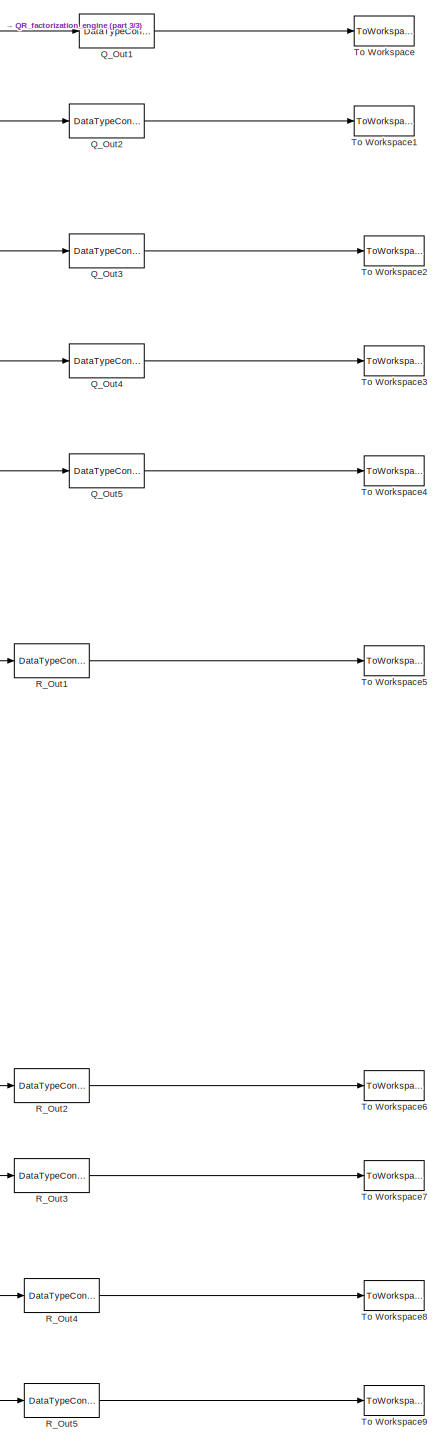
[diagram: root canvas - part 1/3, right side, full height]
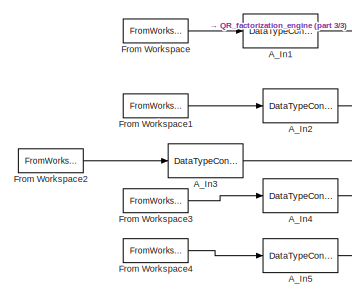
[diagram: root canvas - part 2/3, bottom left region]
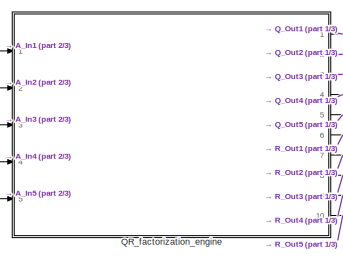
[diagram: root canvas - part 3/3, bottom center region]
MODEL slx_ea465715276a
KIND model
CONFIG AbsTol = auto
CONFIG EnableMultiTasking = off
CONFIG FixedStep = auto
CONFIG MaxStep = auto
CONFIG MinStep = auto
CONFIG RelTol = 1e-3
CONFIG SampleTimeConstraint = Unconstrained
CONFIG Solver = VariableStepAuto
CONFIG SolverName = VariableStepAuto
CONFIG StartTime = 0.0
CONFIG StopTime = simulation_stop_time
BLOCK [DataTypeConversion] A_In1
  OutDataTypeStr = fixdt(1,16,11)
  RndMeth = Floor
  SaturateOnIntegerOverflow = off
BLOCK [DataTypeConversion] A_In2
  OutDataTypeStr = fixdt(1,16,11)
  RndMeth = Floor
  SaturateOnIntegerOverflow = off
BLOCK [DataTypeConversion] A_In3
  OutDataTypeStr = fixdt(1,16,11)
  RndMeth = Floor
  SaturateOnIntegerOverflow = off
BLOCK [DataTypeConversion] A_In4
  OutDataTypeStr = fixdt(1,16,11)
  RndMeth = Floor
  SaturateOnIntegerOverflow = off
BLOCK [DataTypeConversion] A_In5
  OutDataTypeStr = fixdt(1,16,11)
  RndMeth = Floor
  SaturateOnIntegerOverflow = off
BLOCK [FromWorkspace] From Workspace
  Interpolate = off
  OutDataTypeStr = double
  OutputAfterFinalValue = Holding final value
  SampleTime = sample_time
  VariableName = AtI(1)
  ZeroCross = on
BLOCK [FromWorkspace] From Workspace1
  Interpolate = off
  OutDataTypeStr = double
  OutputAfterFinalValue = Holding final value
  SampleTime = sample_time
  VariableName = AtI(2)
  ZeroCross = on
BLOCK [FromWorkspace] From Workspace2
  Interpolate = off
  OutDataTypeStr = double
  OutputAfterFinalValue = Holding final value
  SampleTime = sample_time
  VariableName = AtI(3)
  ZeroCross = on
BLOCK [FromWorkspace] From Workspace3
  Interpolate = off
  OutDataTypeStr = double
  OutputAfterFinalValue = Holding final value
  SampleTime = sample_time
  VariableName = AtI(4)
  ZeroCross = on
BLOCK [FromWorkspace] From Workspace4
  Interpolate = off
  OutDataTypeStr = double
  OutputAfterFinalValue = Holding final value
  SampleTime = sample_time
  VariableName = AtI(5)
  ZeroCross = on
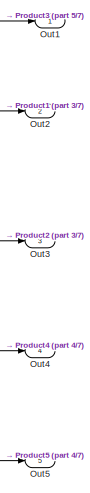
[diagram: QR_factorization_engine - part 1/7, top right region]
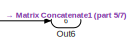
[diagram: QR_factorization_engine - part 2/7, middle right region]
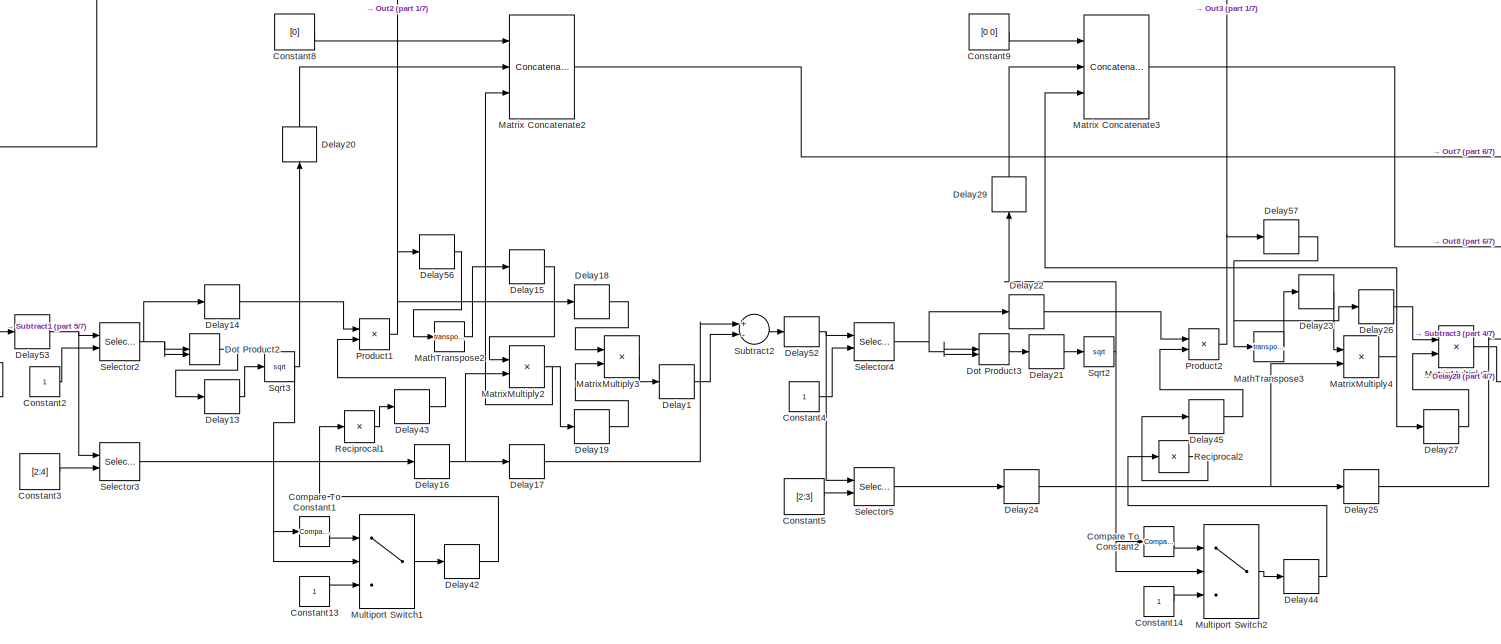
[diagram: QR_factorization_engine - part 3/7, bottom center region]
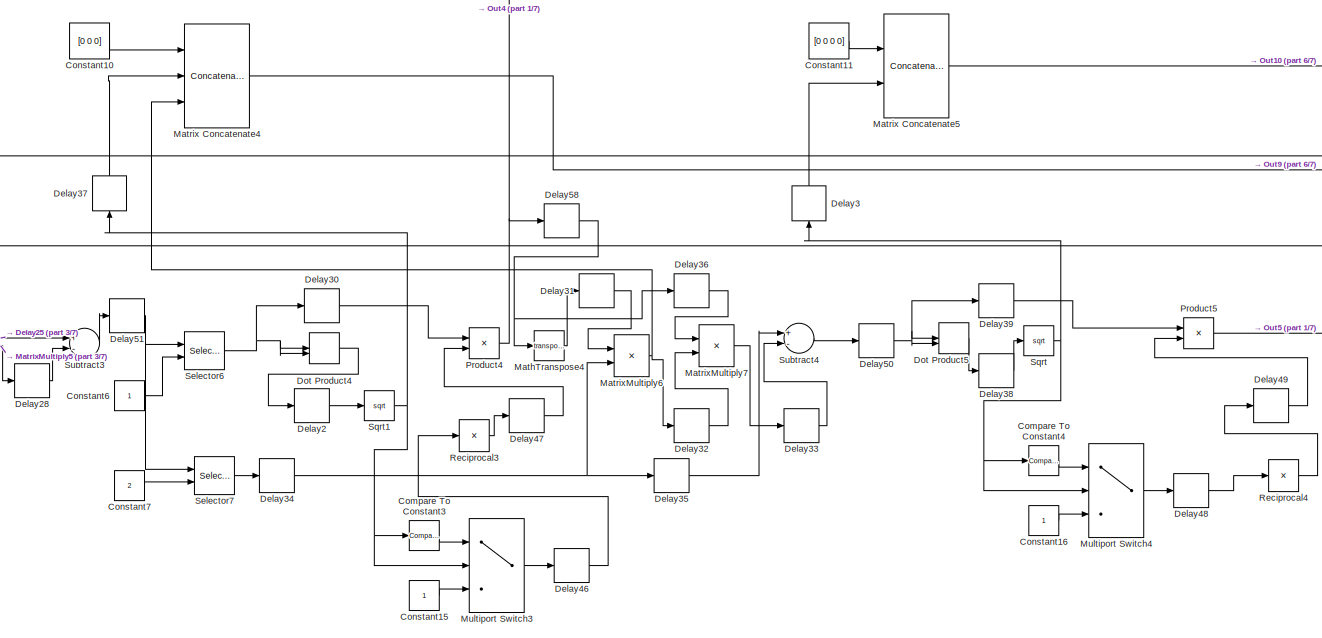
[diagram: QR_factorization_engine - part 4/7, bottom center region]
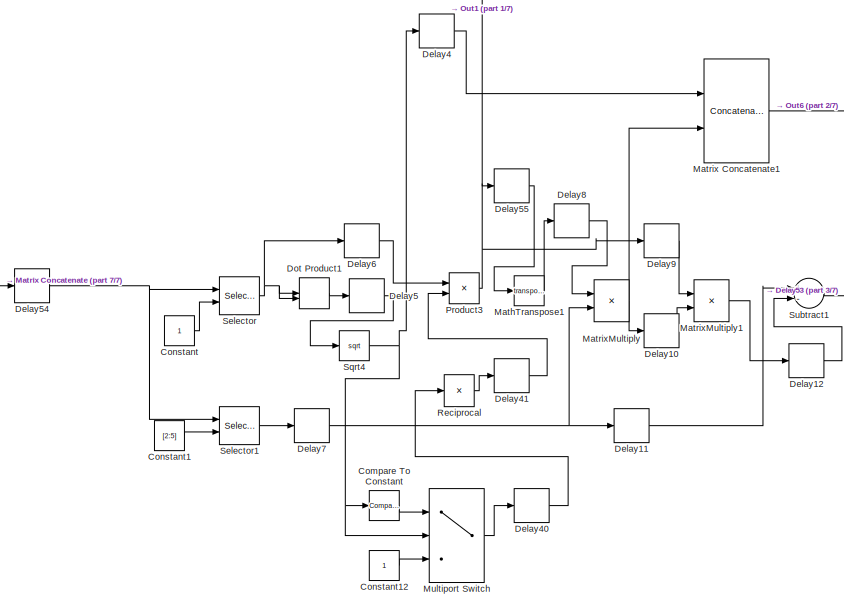
[diagram: QR_factorization_engine - part 5/7, bottom left region]
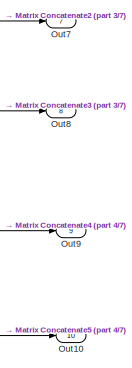
[diagram: QR_factorization_engine - part 6/7, bottom right region]
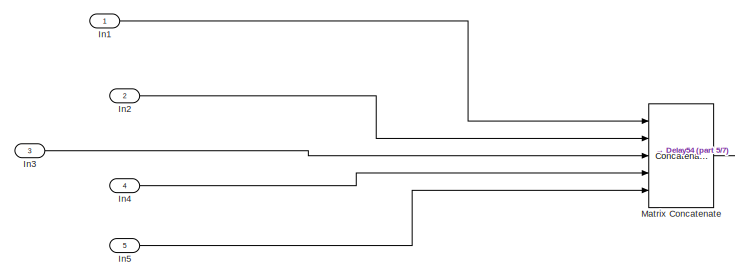
[diagram: QR_factorization_engine - part 7/7, bottom left region]
BLOCK [SubSystem] QR_factorization_engine
  Ports = [5, 10]
  RequestExecContextInheritance = off
BLOCK [Reference] QR_factorization_engine/Compare To Constant  REF=simulink/Logic and Bit
Operations/Compare
To Constant
  Ports = [1, 1]
  SourceBlock = simulink/Logic and Bit\nOperations/Compare\nTo Constant
  SourceProductBaseCode = SL
  SourceProductName = Simulink
  SourceType = Compare To Constant
BLOCK [Reference] QR_factorization_engine/Compare To Constant1  REF=simulink/Logic and Bit
Operations/Compare
To Constant
  Ports = [1, 1]
  SourceBlock = simulink/Logic and Bit\nOperations/Compare\nTo Constant
  SourceProductBaseCode = SL
  SourceProductName = Simulink
  SourceType = Compare To Constant
BLOCK [Reference] QR_factorization_engine/Compare To Constant2  REF=simulink/Logic and Bit
Operations/Compare
To Constant
  Ports = [1, 1]
  SourceBlock = simulink/Logic and Bit\nOperations/Compare\nTo Constant
  SourceProductBaseCode = SL
  SourceProductName = Simulink
  SourceType = Compare To Constant
BLOCK [Reference] QR_factorization_engine/Compare To Constant3  REF=simulink/Logic and Bit
Operations/Compare
To Constant
  Ports = [1, 1]
  SourceBlock = simulink/Logic and Bit\nOperations/Compare\nTo Constant
  SourceProductBaseCode = SL
  SourceProductName = Simulink
  SourceType = Compare To Constant
BLOCK [Reference] QR_factorization_engine/Compare To Constant4  REF=simulink/Logic and Bit
Operations/Compare
To Constant
  Ports = [1, 1]
  SourceBlock = simulink/Logic and Bit\nOperations/Compare\nTo Constant
  SourceProductBaseCode = SL
  SourceProductName = Simulink
  SourceType = Compare To Constant
BLOCK [Constant] QR_factorization_engine/Constant
  OutDataTypeStr = fixdt(0,8,0)
  SampleTime = sample_time
  VectorParams1D = off
BLOCK [Constant] QR_factorization_engine/Constant1
  OutDataTypeStr = fixdt(0,8,0)
  SampleTime = sample_time
  Value = [2:5]
  VectorParams1D = off
BLOCK [Constant] QR_factorization_engine/Constant10
  OutDataTypeStr = fixdt(1,32,26)
  SampleTime = sample_time
  Value = [0 0 0]
  VectorParams1D = off
BLOCK [Constant] QR_factorization_engine/Constant11
  OutDataTypeStr = fixdt(0,16,12)
  SampleTime = sample_time
  Value = [0 0 0 0]
  VectorParams1D = off
BLOCK [Constant] QR_factorization_engine/Constant12
  OutDataTypeStr = fixdt(0,16,15)
  SampleTime = sample_time
  VectorParams1D = off
BLOCK [Constant] QR_factorization_engine/Constant13
  OutDataTypeStr = fixdt(0,16,15)
  SampleTime = sample_time
  VectorParams1D = off
BLOCK [Constant] QR_factorization_engine/Constant14
  OutDataTypeStr = fixdt(0,16,15)
  SampleTime = sample_time
  VectorParams1D = off
BLOCK [Constant] QR_factorization_engine/Constant15
  OutDataTypeStr = fixdt(0,16,15)
  SampleTime = sample_time
  VectorParams1D = off
BLOCK [Constant] QR_factorization_engine/Constant16
  OutDataTypeStr = fixdt(0,16,15)
  SampleTime = sample_time
  VectorParams1D = off
BLOCK [Constant] QR_factorization_engine/Constant2
  OutDataTypeStr = fixdt(0,8,0)
  SampleTime = sample_time
  VectorParams1D = off
BLOCK [Constant] QR_factorization_engine/Constant3
  OutDataTypeStr = fixdt(0,8,0)
  SampleTime = sample_time
  Value = [2:4]
  VectorParams1D = off
BLOCK [Constant] QR_factorization_engine/Constant4
  OutDataTypeStr = fixdt(0,8,0)
  SampleTime = sample_time
  VectorParams1D = off
BLOCK [Constant] QR_factorization_engine/Constant5
  OutDataTypeStr = fixdt(0,8,0)
  SampleTime = sample_time
  Value = [2:3]
  VectorParams1D = off
BLOCK [Constant] QR_factorization_engine/Constant6
  OutDataTypeStr = fixdt(0,8,0)
  SampleTime = sample_time
  VectorParams1D = off
BLOCK [Constant] QR_factorization_engine/Constant7
  OutDataTypeStr = fixdt(0,8,0)
  SampleTime = sample_time
  Value = 2
  VectorParams1D = off
BLOCK [Constant] QR_factorization_engine/Constant8
  OutDataTypeStr = fixdt(1,32,26)
  SampleTime = sample_time
  Value = [0]
  VectorParams1D = off
BLOCK [Constant] QR_factorization_engine/Constant9
  OutDataTypeStr = fixdt(1,32,26)
  SampleTime = sample_time
  Value = [0 0]
  VectorParams1D = off
BLOCK [Delay] QR_factorization_engine/Delay1
  DelayLength = 1
  InitialCondition = 0
  InputPortMap = u0
  Ports = [1, 1]
BLOCK [Delay] QR_factorization_engine/Delay10
  DelayLength = 1
  InitialCondition = 0
  InputPortMap = u0
  Ports = [1, 1]
BLOCK [Delay] QR_factorization_engine/Delay11
  InitialCondition = 0
  InputPortMap = u0
  Ports = [1, 1]
BLOCK [Delay] QR_factorization_engine/Delay12
  DelayLength = 1
  InitialCondition = 0
  InputPortMap = u0
  Ports = [1, 1]
BLOCK [Delay] QR_factorization_engine/Delay13
  DelayLength = 1
  InitialCondition = 0
  InputPortMap = u0
  Ports = [1, 1]
BLOCK [Delay] QR_factorization_engine/Delay14
  DelayLength = 3
  InitialCondition = 0
  InputPortMap = u0
  Ports = [1, 1]
BLOCK [Delay] QR_factorization_engine/Delay15
  DelayLength = 1
  InitialCondition = 0
  InputPortMap = u0
  Ports = [1, 1]
BLOCK [Delay] QR_factorization_engine/Delay16
  DelayLength = 5
  InitialCondition = 0
  InputPortMap = u0
  Ports = [1, 1]
BLOCK [Delay] QR_factorization_engine/Delay17
  InitialCondition = 0
  InputPortMap = u0
  Ports = [1, 1]
BLOCK [Delay] QR_factorization_engine/Delay18
  DelayLength = 3
  InitialCondition = 0
  InputPortMap = u0
  Ports = [1, 1]
BLOCK [Delay] QR_factorization_engine/Delay19
  DelayLength = 1
  InitialCondition = 0
  InputPortMap = u0
  Ports = [1, 1]
BLOCK [Delay] QR_factorization_engine/Delay2
  DelayLength = 1
  InitialCondition = 0
  InputPortMap = u0
  Ports = [1, 1]
BLOCK [Delay] QR_factorization_engine/Delay20
  DelayLength = 4
  InitialCondition = 0
  InputPortMap = u0
  Ports = [1, 1]
BLOCK [Delay] QR_factorization_engine/Delay21
  DelayLength = 1
  InitialCondition = 0
  InputPortMap = u0
  Ports = [1, 1]
BLOCK [Delay] QR_factorization_engine/Delay22
  DelayLength = 3
  InitialCondition = 0
  InputPortMap = u0
  Ports = [1, 1]
BLOCK [Delay] QR_factorization_engine/Delay23
  DelayLength = 1
  InitialCondition = 0
  InputPortMap = u0
  Ports = [1, 1]
BLOCK [Delay] QR_factorization_engine/Delay24
  DelayLength = 5
  InitialCondition = 0
  InputPortMap = u0
  Ports = [1, 1]
BLOCK [Delay] QR_factorization_engine/Delay25
  InitialCondition = 0
  InputPortMap = u0
  Ports = [1, 1]
BLOCK [Delay] QR_factorization_engine/Delay26
  InitialCondition = 0
  InputPortMap = u0
  Ports = [1, 1]
BLOCK [Delay] QR_factorization_engine/Delay27
  DelayLength = 1
  InitialCondition = 0
  InputPortMap = u0
  Ports = [1, 1]
BLOCK [Delay] QR_factorization_engine/Delay28
  DelayLength = 1
  InitialCondition = 0
  InputPortMap = u0
  Ports = [1, 1]
BLOCK [Delay] QR_factorization_engine/Delay29
  DelayLength = 4
  InitialCondition = 0
  InputPortMap = u0
  Ports = [1, 1]
BLOCK [Delay] QR_factorization_engine/Delay3
  DelayLength = 4
  InitialCondition = 0
  InputPortMap = u0
  Ports = [1, 1]
BLOCK [Delay] QR_factorization_engine/Delay30
  DelayLength = 3
  InitialCondition = 0
  InputPortMap = u0
  Ports = [1, 1]
BLOCK [Delay] QR_factorization_engine/Delay31
  DelayLength = 1
  InitialCondition = 0
  InputPortMap = u0
  Ports = [1, 1]
BLOCK [Delay] QR_factorization_engine/Delay32
  DelayLength = 1
  InitialCondition = 0
  InputPortMap = u0
  Ports = [1, 1]
BLOCK [Delay] QR_factorization_engine/Delay33
  DelayLength = 1
  InitialCondition = 0
  InputPortMap = u0
  Ports = [1, 1]
BLOCK [Delay] QR_factorization_engine/Delay34
  DelayLength = 5
  InitialCondition = 0
  InputPortMap = u0
  Ports = [1, 1]
BLOCK [Delay] QR_factorization_engine/Delay35
  InitialCondition = 0
  InputPortMap = u0
  Ports = [1, 1]
BLOCK [Delay] QR_factorization_engine/Delay36
  InitialCondition = 0
  InputPortMap = u0
  Ports = [1, 1]
BLOCK [Delay] QR_factorization_engine/Delay37
  DelayLength = 4
  InitialCondition = 0
  InputPortMap = u0
  Ports = [1, 1]
BLOCK [Delay] QR_factorization_engine/Delay38
  DelayLength = 1
  InitialCondition = 0
  InputPortMap = u0
  Ports = [1, 1]
BLOCK [Delay] QR_factorization_engine/Delay39
  DelayLength = 3
  InitialCondition = 0
  InputPortMap = u0
  Ports = [1, 1]
BLOCK [Delay] QR_factorization_engine/Delay4
  DelayLength = 4
  InitialCondition = 0
  InputPortMap = u0
  Ports = [1, 1]
BLOCK [Delay] QR_factorization_engine/Delay40
  DelayLength = 1
  InitialCondition = 0
  InputPortMap = u0
  Ports = [1, 1]
BLOCK [Delay] QR_factorization_engine/Delay41
  DelayLength = 1
  InitialCondition = 0
  InputPortMap = u0
  Ports = [1, 1]
BLOCK [Delay] QR_factorization_engine/Delay42
  DelayLength = 1
  InitialCondition = 0
  InputPortMap = u0
  Ports = [1, 1]
BLOCK [Delay] QR_factorization_engine/Delay43
  DelayLength = 1
  InitialCondition = 0
  InputPortMap = u0
  Ports = [1, 1]
BLOCK [Delay] QR_factorization_engine/Delay44
  DelayLength = 1
  InitialCondition = 0
  InputPortMap = u0
  Ports = [1, 1]
BLOCK [Delay] QR_factorization_engine/Delay45
  DelayLength = 1
  InitialCondition = 0
  InputPortMap = u0
  Ports = [1, 1]
BLOCK [Delay] QR_factorization_engine/Delay46
  DelayLength = 1
  InitialCondition = 0
  InputPortMap = u0
  Ports = [1, 1]
BLOCK [Delay] QR_factorization_engine/Delay47
  DelayLength = 1
  InitialCondition = 0
  InputPortMap = u0
  Ports = [1, 1]
BLOCK [Delay] QR_factorization_engine/Delay48
  DelayLength = 1
  InitialCondition = 0
  InputPortMap = u0
  Ports = [1, 1]
BLOCK [Delay] QR_factorization_engine/Delay49
  DelayLength = 1
  InitialCondition = 0
  InputPortMap = u0
  Ports = [1, 1]
BLOCK [Delay] QR_factorization_engine/Delay5
  DelayLength = 1
  InitialCondition = 0
  InputPortMap = u0
  Ports = [1, 1]
BLOCK [Delay] QR_factorization_engine/Delay50
  DelayLength = 1
  InitialCondition = 0
  InputPortMap = u0
  Ports = [1, 1]
BLOCK [Delay] QR_factorization_engine/Delay51
  DelayLength = 1
  InitialCondition = 0
  InputPortMap = u0
  Ports = [1, 1]
BLOCK [Delay] QR_factorization_engine/Delay52
  DelayLength = 1
  InitialCondition = 0
  InputPortMap = u0
  Ports = [1, 1]
BLOCK [Delay] QR_factorization_engine/Delay53
  DelayLength = 1
  InitialCondition = 0
  InputPortMap = u0
  Ports = [1, 1]
BLOCK [Delay] QR_factorization_engine/Delay54
  DelayLength = 1
  InitialCondition = 0
  InputPortMap = u0
  Ports = [1, 1]
BLOCK [Delay] QR_factorization_engine/Delay55
  DelayLength = 1
  InitialCondition = 0
  InputPortMap = u0
  Ports = [1, 1]
BLOCK [Delay] QR_factorization_engine/Delay56
  DelayLength = 1
  InitialCondition = 0
  InputPortMap = u0
  Ports = [1, 1]
BLOCK [Delay] QR_factorization_engine/Delay57
  DelayLength = 1
  InitialCondition = 0
  InputPortMap = u0
  Ports = [1, 1]
BLOCK [Delay] QR_factorization_engine/Delay58
  DelayLength = 1
  InitialCondition = 0
  InputPortMap = u0
  Ports = [1, 1]
BLOCK [Delay] QR_factorization_engine/Delay6
  DelayLength = 3
  InitialCondition = 0
  InputPortMap = u0
  Ports = [1, 1]
BLOCK [Delay] QR_factorization_engine/Delay7
  DelayLength = 5
  InitialCondition = 0
  InputPortMap = u0
  Ports = [1, 1]
BLOCK [Delay] QR_factorization_engine/Delay8
  DelayLength = 1
  InitialCondition = 0
  InputPortMap = u0
  Ports = [1, 1]
BLOCK [Delay] QR_factorization_engine/Delay9
  DelayLength = 3
  InitialCondition = 0
  InputPortMap = u0
  Ports = [1, 1]
BLOCK [DotProduct] QR_factorization_engine/Dot Product1
  InputSameDT = off
  OutDataTypeStr = fixdt(0,32,23)
BLOCK [DotProduct] QR_factorization_engine/Dot Product2
  InputSameDT = off
  OutDataTypeStr = fixdt(0,32,23)
BLOCK [DotProduct] QR_factorization_engine/Dot Product3
  InputSameDT = off
  OutDataTypeStr = fixdt(0,32,23)
BLOCK [DotProduct] QR_factorization_engine/Dot Product4
  InputSameDT = off
  OutDataTypeStr = fixdt(0,32,23)
BLOCK [DotProduct] QR_factorization_engine/Dot Product5
  InputSameDT = off
  OutDataTypeStr = fixdt(0,32,24)
BLOCK [Inport] QR_factorization_engine/In1
  IconDisplay = Port number
BLOCK [Inport] QR_factorization_engine/In2
  IconDisplay = Port number
  Port = 2
BLOCK [Inport] QR_factorization_engine/In3
  IconDisplay = Port number
  Port = 3
BLOCK [Inport] QR_factorization_engine/In4
  IconDisplay = Port number
  Port = 4
BLOCK [Inport] QR_factorization_engine/In5
  IconDisplay = Port number
  Port = 5
BLOCK [Math] QR_factorization_engine/MathTranspose1
  Operator = transpose
  OutDataTypeStr = double
  Ports = [1, 1]
BLOCK [Math] QR_factorization_engine/MathTranspose2
  Operator = transpose
  OutDataTypeStr = double
  Ports = [1, 1]
BLOCK [Math] QR_factorization_engine/MathTranspose3
  Operator = transpose
  OutDataTypeStr = double
  Ports = [1, 1]
BLOCK [Math] QR_factorization_engine/MathTranspose4
  Operator = transpose
  OutDataTypeStr = double
  Ports = [1, 1]
BLOCK [Concatenate] QR_factorization_engine/Matrix Concatenate
  ConcatenateDimension = 2
  Mode = Multidimensional array
  NumInputs = 5
  Ports = [5, 1]
BLOCK [Concatenate] QR_factorization_engine/Matrix Concatenate1
  ConcatenateDimension = 2
  Mode = Multidimensional array
  Ports = [2, 1]
BLOCK [Concatenate] QR_factorization_engine/Matrix Concatenate2
  ConcatenateDimension = 2
  Mode = Multidimensional array
  NumInputs = 3
  Ports = [3, 1]
BLOCK [Concatenate] QR_factorization_engine/Matrix Concatenate3
  ConcatenateDimension = 2
  Mode = Multidimensional array
  NumInputs = 3
  Ports = [3, 1]
BLOCK [Concatenate] QR_factorization_engine/Matrix Concatenate4
  ConcatenateDimension = 2
  Mode = Multidimensional array
  NumInputs = 3
  Ports = [3, 1]
BLOCK [Concatenate] QR_factorization_engine/Matrix Concatenate5
  ConcatenateDimension = 2
  Mode = Multidimensional array
  Ports = [2, 1]
BLOCK [Product] QR_factorization_engine/MatrixMultiply
  InputSameDT = off
  Multiplication = Matrix(*)
  OutDataTypeStr = fixdt(1,32,26)
  Ports = [2, 1]
  RndMeth = Floor
  SaturateOnIntegerOverflow = off
BLOCK [Product] QR_factorization_engine/MatrixMultiply1
  InputSameDT = off
  Multiplication = Matrix(*)
  OutDataTypeStr = fixdt(1,16,11)
  Ports = [2, 1]
  RndMeth = Floor
  SaturateOnIntegerOverflow = off
BLOCK [Product] QR_factorization_engine/MatrixMultiply2
  InputSameDT = off
  Multiplication = Matrix(*)
  OutDataTypeStr = fixdt(1,32,26)
  Ports = [2, 1]
  RndMeth = Floor
  SaturateOnIntegerOverflow = off
BLOCK [Product] QR_factorization_engine/MatrixMultiply3
  InputSameDT = off
  Multiplication = Matrix(*)
  OutDataTypeStr = fixdt(1,16,11)
  Ports = [2, 1]
  RndMeth = Floor
  SaturateOnIntegerOverflow = off
BLOCK [Product] QR_factorization_engine/MatrixMultiply4
  InputSameDT = off
  Multiplication = Matrix(*)
  OutDataTypeStr = fixdt(1,32,26)
  Ports = [2, 1]
  RndMeth = Floor
  SaturateOnIntegerOverflow = off
BLOCK [Product] QR_factorization_engine/MatrixMultiply5
  InputSameDT = off
  Multiplication = Matrix(*)
  OutDataTypeStr = fixdt(1,16,11)
  Ports = [2, 1]
  RndMeth = Floor
  SaturateOnIntegerOverflow = off
BLOCK [Product] QR_factorization_engine/MatrixMultiply6
  InputSameDT = off
  Multiplication = Matrix(*)
  OutDataTypeStr = fixdt(1,32,26)
  Ports = [2, 1]
  RndMeth = Floor
  SaturateOnIntegerOverflow = off
BLOCK [Product] QR_factorization_engine/MatrixMultiply7
  InputSameDT = off
  Multiplication = Matrix(*)
  OutDataTypeStr = fixdt(1,32,27)
  Ports = [2, 1]
  RndMeth = Floor
  SaturateOnIntegerOverflow = off
BLOCK [MultiPortSwitch] QR_factorization_engine/Multiport Switch
  DataPortOrder = Zero-based contiguous
  InputSameDT = off
  Inputs = 2
  OutDataTypeStr = fixdt(0,16,11)
  Ports = [3, 1]
  SaturateOnIntegerOverflow = off
  zeroidx = on
BLOCK [MultiPortSwitch] QR_factorization_engine/Multiport Switch1
  DataPortOrder = Zero-based contiguous
  InputSameDT = off
  Inputs = 2
  OutDataTypeStr = fixdt(0,16,11)
  Ports = [3, 1]
  SaturateOnIntegerOverflow = off
  zeroidx = on
BLOCK [MultiPortSwitch] QR_factorization_engine/Multiport Switch2
  DataPortOrder = Zero-based contiguous
  InputSameDT = off
  Inputs = 2
  OutDataTypeStr = fixdt(0,16,11)
  Ports = [3, 1]
  SaturateOnIntegerOverflow = off
  zeroidx = on
BLOCK [MultiPortSwitch] QR_factorization_engine/Multiport Switch3
  DataPortOrder = Zero-based contiguous
  InputSameDT = off
  Inputs = 2
  OutDataTypeStr = fixdt(0,16,11)
  Ports = [3, 1]
  SaturateOnIntegerOverflow = off
  zeroidx = on
BLOCK [MultiPortSwitch] QR_factorization_engine/Multiport Switch4
  DataPortOrder = Zero-based contiguous
  InputSameDT = off
  Inputs = 2
  OutDataTypeStr = fixdt(0,16,12)
  Ports = [3, 1]
  SaturateOnIntegerOverflow = off
  zeroidx = on
BLOCK [Outport] QR_factorization_engine/Out1
  IconDisplay = Port number
BLOCK [Outport] QR_factorization_engine/Out10
  IconDisplay = Port number
  Port = 10
BLOCK [Outport] QR_factorization_engine/Out2
  IconDisplay = Port number
  Port = 2
BLOCK [Outport] QR_factorization_engine/Out3
  IconDisplay = Port number
  Port = 3
BLOCK [Outport] QR_factorization_engine/Out4
  IconDisplay = Port number
  Port = 4
BLOCK [Outport] QR_factorization_engine/Out5
  IconDisplay = Port number
  Port = 5
BLOCK [Outport] QR_factorization_engine/Out6
  IconDisplay = Port number
  Port = 6
BLOCK [Outport] QR_factorization_engine/Out7
  IconDisplay = Port number
  Port = 7
BLOCK [Outport] QR_factorization_engine/Out8
  IconDisplay = Port number
  Port = 8
BLOCK [Outport] QR_factorization_engine/Out9
  IconDisplay = Port number
  Port = 9
BLOCK [Product] QR_factorization_engine/Product1
  InputSameDT = off
  OutDataTypeStr = fixdt(1,16,15)
  Ports = [2, 1]
  RndMeth = Floor
  SaturateOnIntegerOverflow = off
BLOCK [Product] QR_factorization_engine/Product2
  InputSameDT = off
  OutDataTypeStr = fixdt(1,16,15)
  Ports = [2, 1]
  RndMeth = Floor
  SaturateOnIntegerOverflow = off
BLOCK [Product] QR_factorization_engine/Product3
  InputSameDT = off
  OutDataTypeStr = fixdt(1,16,15)
  Ports = [2, 1]
  RndMeth = Floor
  SaturateOnIntegerOverflow = off
BLOCK [Product] QR_factorization_engine/Product4
  InputSameDT = off
  OutDataTypeStr = fixdt(1,16,15)
  Ports = [2, 1]
  RndMeth = Floor
  SaturateOnIntegerOverflow = off
BLOCK [Product] QR_factorization_engine/Product5
  InputSameDT = off
  OutDataTypeStr = fixdt(1,16,15)
  Ports = [2, 1]
  RndMeth = Floor
  SaturateOnIntegerOverflow = off
BLOCK [Product] QR_factorization_engine/Reciprocal
  InputSameDT = off
  Inputs = /
  OutDataTypeStr = fixdt(0,32,31)
  Ports = [1, 1]
BLOCK [Product] QR_factorization_engine/Reciprocal1
  InputSameDT = off
  Inputs = /
  OutDataTypeStr = fixdt(0,32,31)
  Ports = [1, 1]
BLOCK [Product] QR_factorization_engine/Reciprocal2
  InputSameDT = off
  Inputs = /
  OutDataTypeStr = fixdt(0,32,30)
  Ports = [1, 1]
BLOCK [Product] QR_factorization_engine/Reciprocal3
  InputSameDT = off
  Inputs = /
  OutDataTypeStr = fixdt(0,32,29)
  Ports = [1, 1]
BLOCK [Product] QR_factorization_engine/Reciprocal4
  InputSameDT = off
  Inputs = /
  OutDataTypeStr = fixdt(0,32,25)
  Ports = [1, 1]
BLOCK [Selector] QR_factorization_engine/Selector
  IndexOptions = Select all,Index vector (port)
  Indices = [1 3],1
  InputPortWidth = 3
  NumberOfDimensions = 2
  OutputSizes = 1,1
  Ports = [2, 1]
BLOCK [Selector] QR_factorization_engine/Selector1
  IndexOptions = Select all,Index vector (port)
  Indices = [1 3],1
  InputPortWidth = 3
  NumberOfDimensions = 2
  OutputSizes = 1,1
  Ports = [2, 1]
BLOCK [Selector] QR_factorization_engine/Selector2
  IndexOptions = Select all,Index vector (port)
  Indices = [1 3],1
  InputPortWidth = 3
  NumberOfDimensions = 2
  OutputSizes = 1,1
  Ports = [2, 1]
BLOCK [Selector] QR_factorization_engine/Selector3
  IndexOptions = Select all,Index vector (port)
  Indices = [1 3],1
  InputPortWidth = 3
  NumberOfDimensions = 2
  OutputSizes = 1,1
  Ports = [2, 1]
BLOCK [Selector] QR_factorization_engine/Selector4
  IndexOptions = Select all,Index vector (port)
  Indices = [1 3],1
  InputPortWidth = 3
  NumberOfDimensions = 2
  OutputSizes = 1,1
  Ports = [2, 1]
BLOCK [Selector] QR_factorization_engine/Selector5
  IndexOptions = Select all,Index vector (port)
  Indices = [1 3],1
  InputPortWidth = 3
  NumberOfDimensions = 2
  OutputSizes = 1,1
  Ports = [2, 1]
BLOCK [Selector] QR_factorization_engine/Selector6
  IndexOptions = Select all,Index vector (port)
  Indices = [1 3],1
  InputPortWidth = 3
  NumberOfDimensions = 2
  OutputSizes = 1,1
  Ports = [2, 1]
BLOCK [Selector] QR_factorization_engine/Selector7
  IndexOptions = Select all,Index vector (port)
  Indices = [1 3],1
  InputPortWidth = 3
  NumberOfDimensions = 2
  OutputSizes = 1,1
  Ports = [2, 1]
BLOCK [Sqrt] QR_factorization_engine/Sqrt
  OutDataTypeStr = fixdt(0,16,12)
BLOCK [Sqrt] QR_factorization_engine/Sqrt1
  OutDataTypeStr = fixdt(1,32,26)
BLOCK [Sqrt] QR_factorization_engine/Sqrt2
  OutDataTypeStr = fixdt(1,32,26)
BLOCK [Sqrt] QR_factorization_engine/Sqrt3
  OutDataTypeStr = fixdt(1,32,26)
BLOCK [Sqrt] QR_factorization_engine/Sqrt4
  OutDataTypeStr = fixdt(1,32,26)
BLOCK [Sum] QR_factorization_engine/Subtract1
  AccumDataTypeStr = fixdt(1,32,27)
  InputSameDT = off
  Inputs = +-
  OutDataTypeStr = fixdt(1,16,11)
  Ports = [2, 1]
  SaturateOnIntegerOverflow = off
BLOCK [Sum] QR_factorization_engine/Subtract2
  AccumDataTypeStr = fixdt(1,32,27)
  InputSameDT = off
  Inputs = +-
  OutDataTypeStr = fixdt(1,16,11)
  Ports = [2, 1]
  SaturateOnIntegerOverflow = off
BLOCK [Sum] QR_factorization_engine/Subtract3
  AccumDataTypeStr = fixdt(1,32,27)
  InputSameDT = off
  Inputs = +-
  OutDataTypeStr = fixdt(1,16,11)
  Ports = [2, 1]
  SaturateOnIntegerOverflow = off
BLOCK [Sum] QR_factorization_engine/Subtract4
  AccumDataTypeStr = fixdt(1,32,27)
  InputSameDT = off
  Inputs = +-
  OutDataTypeStr = fixdt(1,32,27)
  Ports = [2, 1]
  SaturateOnIntegerOverflow = off
BLOCK [DataTypeConversion] Q_Out1
  RndMeth = Floor
  SaturateOnIntegerOverflow = off
BLOCK [DataTypeConversion] Q_Out2
  RndMeth = Floor
  SaturateOnIntegerOverflow = off
BLOCK [DataTypeConversion] Q_Out3
  RndMeth = Floor
  SaturateOnIntegerOverflow = off
BLOCK [DataTypeConversion] Q_Out4
  RndMeth = Floor
  SaturateOnIntegerOverflow = off
BLOCK [DataTypeConversion] Q_Out5
  RndMeth = Floor
  SaturateOnIntegerOverflow = off
BLOCK [DataTypeConversion] R_Out1
  RndMeth = Floor
  SaturateOnIntegerOverflow = off
BLOCK [DataTypeConversion] R_Out2
  RndMeth = Floor
  SaturateOnIntegerOverflow = off
BLOCK [DataTypeConversion] R_Out3
  RndMeth = Floor
  SaturateOnIntegerOverflow = off
BLOCK [DataTypeConversion] R_Out4
  RndMeth = Floor
  SaturateOnIntegerOverflow = off
BLOCK [DataTypeConversion] R_Out5
  RndMeth = Floor
  SaturateOnIntegerOverflow = off
BLOCK [ToWorkspace] To Workspace
  FixptAsFi = on
  MaxDataPoints = inf
  Ports = [1]
  SampleTime = -1
  SaveFormat = Structure With Time
  VariableName = q1
BLOCK [ToWorkspace] To Workspace1
  FixptAsFi = on
  MaxDataPoints = inf
  Ports = [1]
  SampleTime = -1
  SaveFormat = Structure With Time
  VariableName = q2
BLOCK [ToWorkspace] To Workspace2
  FixptAsFi = on
  MaxDataPoints = inf
  Ports = [1]
  SampleTime = -1
  SaveFormat = Structure With Time
  VariableName = q3
BLOCK [ToWorkspace] To Workspace3
  FixptAsFi = on
  MaxDataPoints = inf
  Ports = [1]
  SampleTime = -1
  SaveFormat = Structure With Time
  VariableName = q4
BLOCK [ToWorkspace] To Workspace4
  FixptAsFi = on
  MaxDataPoints = inf
  Ports = [1]
  SampleTime = -1
  SaveFormat = Structure With Time
  VariableName = q5
BLOCK [ToWorkspace] To Workspace5
  FixptAsFi = on
  MaxDataPoints = inf
  Ports = [1]
  SampleTime = -1
  SaveFormat = Structure With Time
  VariableName = r1
BLOCK [ToWorkspace] To Workspace6
  FixptAsFi = on
  MaxDataPoints = inf
  Ports = [1]
  SampleTime = -1
  SaveFormat = Structure With Time
  VariableName = r2
BLOCK [ToWorkspace] To Workspace7
  FixptAsFi = on
  MaxDataPoints = inf
  Ports = [1]
  SampleTime = -1
  SaveFormat = Structure With Time
  VariableName = r3
BLOCK [ToWorkspace] To Workspace8
  FixptAsFi = on
  MaxDataPoints = inf
  Ports = [1]
  SampleTime = -1
  SaveFormat = Structure With Time
  VariableName = r4
BLOCK [ToWorkspace] To Workspace9
  FixptAsFi = on
  MaxDataPoints = inf
  Ports = [1]
  SampleTime = -1
  SaveFormat = Structure With Time
  VariableName = r5
LINE A_In1:1 -> QR_factorization_engine:1
LINE A_In2:1 -> QR_factorization_engine:2
LINE A_In3:1 -> QR_factorization_engine:3
LINE A_In4:1 -> QR_factorization_engine:4
LINE A_In5:1 -> QR_factorization_engine:5
LINE From Workspace1:1 -> A_In2:1
LINE From Workspace2:1 -> A_In3:1
LINE From Workspace3:1 -> A_In4:1
LINE From Workspace4:1 -> A_In5:1
LINE From Workspace:1 -> A_In1:1
LINE QR_factorization_engine/Compare To Constant1:1 -> QR_factorization_engine/Multiport Switch1:1
LINE QR_factorization_engine/Compare To Constant2:1 -> QR_factorization_engine/Multiport Switch2:1
LINE QR_factorization_engine/Compare To Constant3:1 -> QR_factorization_engine/Multiport Switch3:1
LINE QR_factorization_engine/Compare To Constant4:1 -> QR_factorization_engine/Multiport Switch4:1
LINE QR_factorization_engine/Compare To Constant:1 -> QR_factorization_engine/Multiport Switch:1
LINE QR_factorization_engine/Constant10:1 -> QR_factorization_engine/Matrix Concatenate4:1
LINE QR_factorization_engine/Constant11:1 -> QR_factorization_engine/Matrix Concatenate5:1
LINE QR_factorization_engine/Constant12:1 -> QR_factorization_engine/Multiport Switch:3
LINE QR_factorization_engine/Constant13:1 -> QR_factorization_engine/Multiport Switch1:3
LINE QR_factorization_engine/Constant14:1 -> QR_factorization_engine/Multiport Switch2:3
LINE QR_factorization_engine/Constant15:1 -> QR_factorization_engine/Multiport Switch3:3
LINE QR_factorization_engine/Constant16:1 -> QR_factorization_engine/Multiport Switch4:3
LINE QR_factorization_engine/Constant1:1 -> QR_factorization_engine/Selector1:2
LINE QR_factorization_engine/Constant2:1 -> QR_factorization_engine/Selector2:2
LINE QR_factorization_engine/Constant3:1 -> QR_factorization_engine/Selector3:2
LINE QR_factorization_engine/Constant4:1 -> QR_factorization_engine/Selector4:2
LINE QR_factorization_engine/Constant5:1 -> QR_factorization_engine/Selector5:2
LINE QR_factorization_engine/Constant6:1 -> QR_factorization_engine/Selector6:2
LINE QR_factorization_engine/Constant7:1 -> QR_factorization_engine/Selector7:2
LINE QR_factorization_engine/Constant8:1 -> QR_factorization_engine/Matrix Concatenate2:1
LINE QR_factorization_engine/Constant9:1 -> QR_factorization_engine/Matrix Concatenate3:1
LINE QR_factorization_engine/Constant:1 -> QR_factorization_engine/Selector:2
LINE QR_factorization_engine/Delay10:1 -> QR_factorization_engine/MatrixMultiply1:2
LINE QR_factorization_engine/Delay11:1 -> QR_factorization_engine/Subtract1:1
LINE QR_factorization_engine/Delay12:1 -> QR_factorization_engine/Subtract1:2
LINE QR_factorization_engine/Delay13:1 -> QR_factorization_engine/Sqrt3:1
LINE QR_factorization_engine/Delay14:1 -> QR_factorization_engine/Product1:1
LINE QR_factorization_engine/Delay15:1 -> QR_factorization_engine/MatrixMultiply2:1
NET QR_factorization_engine/Delay16:1 -> QR_factorization_engine/Delay17:1, QR_factorization_engine/MatrixMultiply2:2
LINE QR_factorization_engine/Delay17:1 -> QR_factorization_engine/Subtract2:1
LINE QR_factorization_engine/Delay18:1 -> QR_factorization_engine/MatrixMultiply3:1
LINE QR_factorization_engine/Delay19:1 -> QR_factorization_engine/MatrixMultiply3:2
LINE QR_factorization_engine/Delay1:1 -> QR_factorization_engine/Subtract2:2
LINE QR_factorization_engine/Delay20:1 -> QR_factorization_engine/Matrix Concatenate2:2
LINE QR_factorization_engine/Delay21:1 -> QR_factorization_engine/Sqrt2:1
LINE QR_factorization_engine/Delay22:1 -> QR_factorization_engine/Product2:1
LINE QR_factorization_engine/Delay23:1 -> QR_factorization_engine/MatrixMultiply4:1
NET QR_factorization_engine/Delay24:1 -> QR_factorization_engine/Delay25:1, QR_factorization_engine/MatrixMultiply4:2
LINE QR_factorization_engine/Delay25:1 -> QR_factorization_engine/Subtract3:1
LINE QR_factorization_engine/Delay26:1 -> QR_factorization_engine/MatrixMultiply5:1
LINE QR_factorization_engine/Delay27:1 -> QR_factorization_engine/MatrixMultiply5:2
LINE QR_factorization_engine/Delay28:1 -> QR_factorization_engine/Subtract3:2
LINE QR_factorization_engine/Delay29:1 -> QR_factorization_engine/Matrix Concatenate3:2
LINE QR_factorization_engine/Delay2:1 -> QR_factorization_engine/Sqrt1:1
LINE QR_factorization_engine/Delay30:1 -> QR_factorization_engine/Product4:1
LINE QR_factorization_engine/Delay31:1 -> QR_factorization_engine/MatrixMultiply6:1
LINE QR_factorization_engine/Delay32:1 -> QR_factorization_engine/MatrixMultiply7:2
LINE QR_factorization_engine/Delay33:1 -> QR_factorization_engine/Subtract4:2
NET QR_factorization_engine/Delay34:1 -> QR_factorization_engine/Delay35:1, QR_factorization_engine/MatrixMultiply6:2
LINE QR_factorization_engine/Delay35:1 -> QR_factorization_engine/Subtract4:1
LINE QR_factorization_engine/Delay36:1 -> QR_factorization_engine/MatrixMultiply7:1
LINE QR_factorization_engine/Delay37:1 -> QR_factorization_engine/Matrix Concatenate4:2
LINE QR_factorization_engine/Delay38:1 -> QR_factorization_engine/Sqrt:1
LINE QR_factorization_engine/Delay39:1 -> QR_factorization_engine/Product5:1
LINE QR_factorization_engine/Delay3:1 -> QR_factorization_engine/Matrix Concatenate5:2
LINE QR_factorization_engine/Delay40:1 -> QR_factorization_engine/Reciprocal:1
LINE QR_factorization_engine/Delay41:1 -> QR_factorization_engine/Product3:2
LINE QR_factorization_engine/Delay42:1 -> QR_factorization_engine/Reciprocal1:1
LINE QR_factorization_engine/Delay43:1 -> QR_factorization_engine/Product1:2
LINE QR_factorization_engine/Delay44:1 -> QR_factorization_engine/Reciprocal2:1
LINE QR_factorization_engine/Delay45:1 -> QR_factorization_engine/Product2:2
LINE QR_factorization_engine/Delay46:1 -> QR_factorization_engine/Reciprocal3:1
LINE QR_factorization_engine/Delay47:1 -> QR_factorization_engine/Product4:2
LINE QR_factorization_engine/Delay48:1 -> QR_factorization_engine/Reciprocal4:1
LINE QR_factorization_engine/Delay49:1 -> QR_factorization_engine/Product5:2
LINE QR_factorization_engine/Delay4:1 -> QR_factorization_engine/Matrix Concatenate1:1
NET QR_factorization_engine/Delay50:1 -> QR_factorization_engine/Delay39:1, QR_factorization_engine/Dot Product5:1, QR_factorization_engine/Dot Product5:2
NET QR_factorization_engine/Delay51:1 -> QR_factorization_engine/Selector6:1, QR_factorization_engine/Selector7:1
NET QR_factorization_engine/Delay52:1 -> QR_factorization_engine/Selector4:1, QR_factorization_engine/Selector5:1
NET QR_factorization_engine/Delay53:1 -> QR_factorization_engine/Selector2:1, QR_factorization_engine/Selector3:1
NET QR_factorization_engine/Delay54:1 -> QR_factorization_engine/Selector1:1, QR_factorization_engine/Selector:1
LINE QR_factorization_engine/Delay55:1 -> QR_factorization_engine/MathTranspose1:1
LINE QR_factorization_engine/Delay56:1 -> QR_factorization_engine/MathTranspose2:1
NET QR_factorization_engine/Delay57:1 -> QR_factorization_engine/Delay26:1, QR_factorization_engine/MathTranspose3:1
NET QR_factorization_engine/Delay58:1 -> QR_factorization_engine/Delay36:1, QR_factorization_engine/MathTranspose4:1
LINE QR_factorization_engine/Delay5:1 -> QR_factorization_engine/Sqrt4:1
LINE QR_factorization_engine/Delay6:1 -> QR_factorization_engine/Product3:1
NET QR_factorization_engine/Delay7:1 -> QR_factorization_engine/Delay11:1, QR_factorization_engine/MatrixMultiply:2
LINE QR_factorization_engine/Delay8:1 -> QR_factorization_engine/MatrixMultiply:1
LINE QR_factorization_engine/Delay9:1 -> QR_factorization_engine/MatrixMultiply1:1
LINE QR_factorization_engine/Dot Product1:1 -> QR_factorization_engine/Delay5:1
LINE QR_factorization_engine/Dot Product2:1 -> QR_factorization_engine/Delay13:1
LINE QR_factorization_engine/Dot Product3:1 -> QR_factorization_engine/Delay21:1
LINE QR_factorization_engine/Dot Product4:1 -> QR_factorization_engine/Delay2:1
LINE QR_factorization_engine/Dot Product5:1 -> QR_factorization_engine/Delay38:1
LINE QR_factorization_engine/In1:1 -> QR_factorization_engine/Matrix Concatenate:1
LINE QR_factorization_engine/In2:1 -> QR_factorization_engine/Matrix Concatenate:2
LINE QR_factorization_engine/In3:1 -> QR_factorization_engine/Matrix Concatenate:3
LINE QR_factorization_engine/In4:1 -> QR_factorization_engine/Matrix Concatenate:4
LINE QR_factorization_engine/In5:1 -> QR_factorization_engine/Matrix Concatenate:5
LINE QR_factorization_engine/MathTranspose1:1 -> QR_factorization_engine/Delay8:1
LINE QR_factorization_engine/MathTranspose2:1 -> QR_factorization_engine/Delay15:1
LINE QR_factorization_engine/MathTranspose3:1 -> QR_factorization_engine/Delay23:1
LINE QR_factorization_engine/MathTranspose4:1 -> QR_factorization_engine/Delay31:1
LINE QR_factorization_engine/Matrix Concatenate1:1 -> QR_factorization_engine/Out6:1
LINE QR_factorization_engine/Matrix Concatenate2:1 -> QR_factorization_engine/Out7:1
LINE QR_factorization_engine/Matrix Concatenate3:1 -> QR_factorization_engine/Out8:1
LINE QR_factorization_engine/Matrix Concatenate4:1 -> QR_factorization_engine/Out9:1
LINE QR_factorization_engine/Matrix Concatenate5:1 -> QR_factorization_engine/Out10:1
LINE QR_factorization_engine/Matrix Concatenate:1 -> QR_factorization_engine/Delay54:1
LINE QR_factorization_engine/MatrixMultiply1:1 -> QR_factorization_engine/Delay12:1
NET QR_factorization_engine/MatrixMultiply2:1 -> QR_factorization_engine/Delay19:1, QR_factorization_engine/Matrix Concatenate2:3
LINE QR_factorization_engine/MatrixMultiply3:1 -> QR_factorization_engine/Delay1:1
NET QR_factorization_engine/MatrixMultiply4:1 -> QR_factorization_engine/Delay27:1, QR_factorization_engine/Matrix Concatenate3:3
LINE QR_factorization_engine/MatrixMultiply5:1 -> QR_factorization_engine/Delay28:1
NET QR_factorization_engine/MatrixMultiply6:1 -> QR_factorization_engine/Delay32:1, QR_factorization_engine/Matrix Concatenate4:3
LINE QR_factorization_engine/MatrixMultiply7:1 -> QR_factorization_engine/Delay33:1
NET QR_factorization_engine/MatrixMultiply:1 -> QR_factorization_engine/Delay10:1, QR_factorization_engine/Matrix Concatenate1:2
LINE QR_factorization_engine/Multiport Switch1:1 -> QR_factorization_engine/Delay42:1
LINE QR_factorization_engine/Multiport Switch2:1 -> QR_factorization_engine/Delay44:1
LINE QR_factorization_engine/Multiport Switch3:1 -> QR_factorization_engine/Delay46:1
LINE QR_factorization_engine/Multiport Switch4:1 -> QR_factorization_engine/Delay48:1
LINE QR_factorization_engine/Multiport Switch:1 -> QR_factorization_engine/Delay40:1
NET QR_factorization_engine/Product1:1 -> QR_factorization_engine/Delay18:1, QR_factorization_engine/Delay56:1, QR_factorization_engine/Out2:1
NET QR_factorization_engine/Product2:1 -> QR_factorization_engine/Delay57:1, QR_factorization_engine/Out3:1
NET QR_factorization_engine/Product3:1 -> QR_factorization_engine/Delay55:1, QR_factorization_engine/Delay9:1, QR_factorization_engine/Out1:1
NET QR_factorization_engine/Product4:1 -> QR_factorization_engine/Delay58:1, QR_factorization_engine/Out4:1
LINE QR_factorization_engine/Product5:1 -> QR_factorization_engine/Out5:1
LINE QR_factorization_engine/Reciprocal1:1 -> QR_factorization_engine/Delay43:1
LINE QR_factorization_engine/Reciprocal2:1 -> QR_factorization_engine/Delay45:1
LINE QR_factorization_engine/Reciprocal3:1 -> QR_factorization_engine/Delay47:1
LINE QR_factorization_engine/Reciprocal4:1 -> QR_factorization_engine/Delay49:1
LINE QR_factorization_engine/Reciprocal:1 -> QR_factorization_engine/Delay41:1
LINE QR_factorization_engine/Selector1:1 -> QR_factorization_engine/Delay7:1
NET QR_factorization_engine/Selector2:1 -> QR_factorization_engine/Delay14:1, QR_factorization_engine/Dot Product2:1, QR_factorization_engine/Dot Product2:2
LINE QR_factorization_engine/Selector3:1 -> QR_factorization_engine/Delay16:1
NET QR_factorization_engine/Selector4:1 -> QR_factorization_engine/Delay22:1, QR_factorization_engine/Dot Product3:1, QR_factorization_engine/Dot Product3:2
LINE QR_factorization_engine/Selector5:1 -> QR_factorization_engine/Delay24:1
NET QR_factorization_engine/Selector6:1 -> QR_factorization_engine/Delay30:1, QR_factorization_engine/Dot Product4:1, QR_factorization_engine/Dot Product4:2
LINE QR_factorization_engine/Selector7:1 -> QR_factorization_engine/Delay34:1
NET QR_factorization_engine/Selector:1 -> QR_factorization_engine/Delay6:1, QR_factorization_engine/Dot Product1:1, QR_factorization_engine/Dot Product1:2
NET QR_factorization_engine/Sqrt1:1 -> QR_factorization_engine/Compare To Constant3:1, QR_factorization_engine/Delay37:1, QR_factorization_engine/Multiport Switch3:2
NET QR_factorization_engine/Sqrt2:1 -> QR_factorization_engine/Compare To Constant2:1, QR_factorization_engine/Delay29:1, QR_factorization_engine/Multiport Switch2:2
NET QR_factorization_engine/Sqrt3:1 -> QR_factorization_engine/Compare To Constant1:1, QR_factorization_engine/Delay20:1, QR_factorization_engine/Multiport Switch1:2
NET QR_factorization_engine/Sqrt4:1 -> QR_factorization_engine/Compare To Constant:1, QR_factorization_engine/Delay4:1, QR_factorization_engine/Multiport Switch:2
NET QR_factorization_engine/Sqrt:1 -> QR_factorization_engine/Compare To Constant4:1, QR_factorization_engine/Delay3:1, QR_factorization_engine/Multiport Switch4:2
LINE QR_factorization_engine/Subtract1:1 -> QR_factorization_engine/Delay53:1
LINE QR_factorization_engine/Subtract2:1 -> QR_factorization_engine/Delay52:1
LINE QR_factorization_engine/Subtract3:1 -> QR_factorization_engine/Delay51:1
LINE QR_factorization_engine/Subtract4:1 -> QR_factorization_engine/Delay50:1
LINE QR_factorization_engine:1 -> Q_Out1:1
LINE QR_factorization_engine:10 -> R_Out5:1
LINE QR_factorization_engine:2 -> Q_Out2:1
LINE QR_factorization_engine:3 -> Q_Out3:1
LINE QR_factorization_engine:4 -> Q_Out4:1
LINE QR_factorization_engine:5 -> Q_Out5:1
LINE QR_factorization_engine:6 -> R_Out1:1
LINE QR_factorization_engine:7 -> R_Out2:1
LINE QR_factorization_engine:8 -> R_Out3:1
LINE QR_factorization_engine:9 -> R_Out4:1
LINE Q_Out1:1 -> To Workspace:1
LINE Q_Out2:1 -> To Workspace1:1
LINE Q_Out3:1 -> To Workspace2:1
LINE Q_Out4:1 -> To Workspace3:1
LINE Q_Out5:1 -> To Workspace4:1
LINE R_Out1:1 -> To Workspace5:1
LINE R_Out2:1 -> To Workspace6:1
LINE R_Out3:1 -> To Workspace7:1
LINE R_Out4:1 -> To Workspace8:1
LINE R_Out5:1 -> To Workspace9:1
note: NET lines group one-source signal fan-out (src -> all destinations, sorted); 1:1 wires keep LINE
